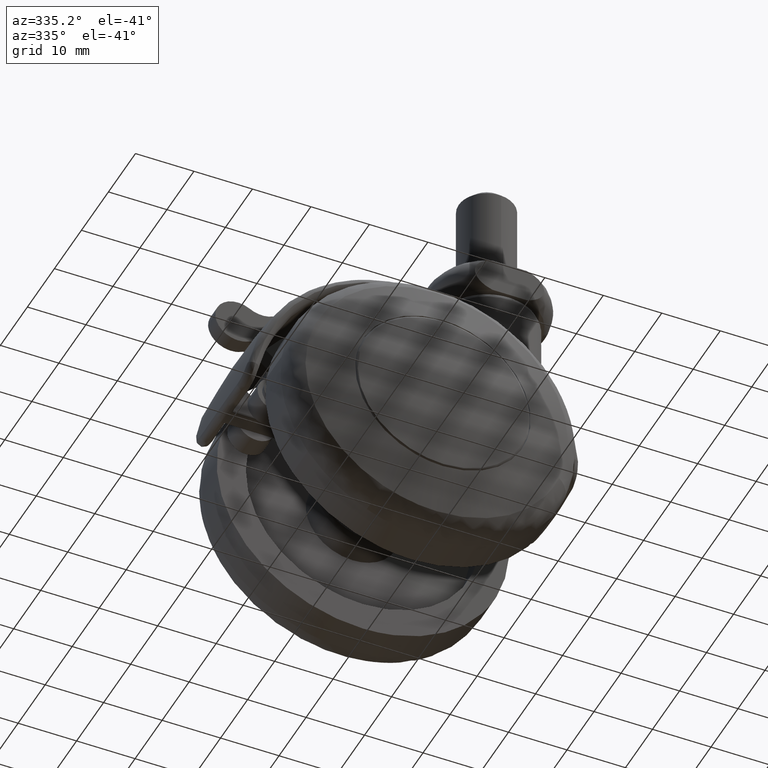
[diagram: clean part render]
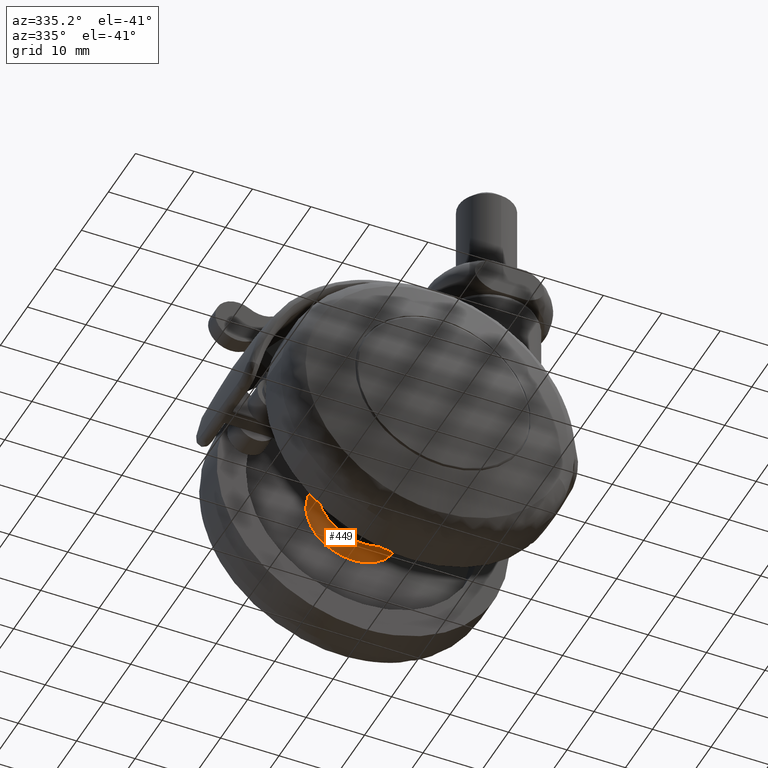
[diagram: same view with one face highlighted and labeled with its STEP entity id]
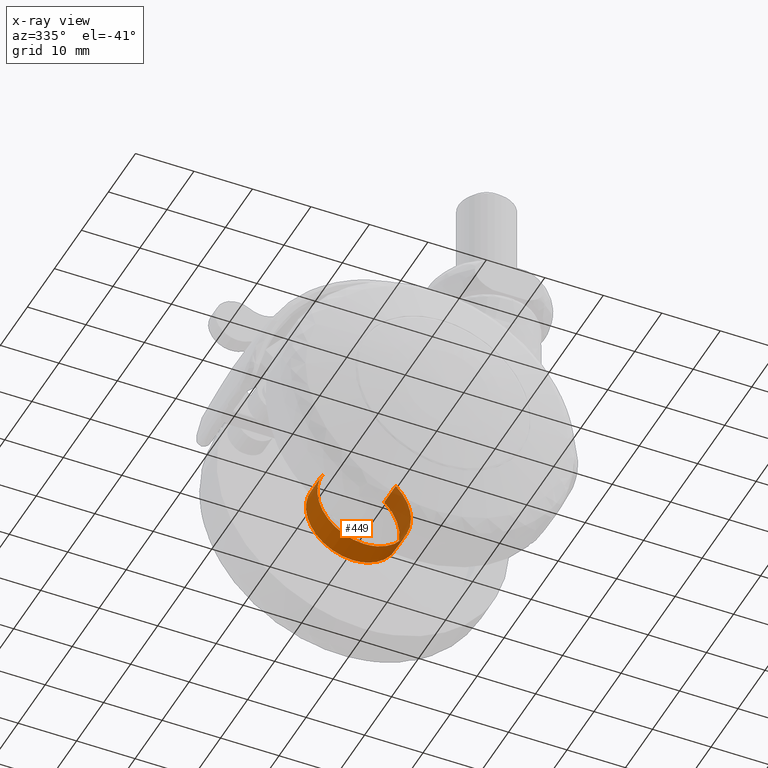
[diagram: x-ray of the same camera — body ghosted, the highlighted face saturated]
A machine part, auxiliary view. The second image highlights one B-rep face of the part: STEP entity #449.
The next image is the same camera in x-ray: the body ghosted, the highlighted face saturated — about 33% of this face is hidden behind the body in this view.
In plain terms, the highlighted face is a freeform B-spline surface patch.
Its self-contained STEP definition (entity closure, byte-faithful):
#252=CARTESIAN_POINT('',(6.999573644516574,-8.499999999999371,3.873753837683934));
#253=VERTEX_POINT('',#252);
#269=CARTESIAN_POINT('',(-5.404720900731245,-8.499999999763439,5.898219391070008));
#270=VERTEX_POINT('',#269);
#284=CARTESIAN_POINT('',(-5.404720914899488,-12.749999999999821,5.898219378087777));
#285=VERTEX_POINT('',#284);
#286=CARTESIAN_POINT('',(-5.404720900731245,-8.499999999763439,5.898219391070008));
#287=CARTESIAN_POINT('',(-5.404720914899488,-12.749999999999821,5.898219378087777));
#288=QUASI_UNIFORM_CURVE('',1,(#286,#287),.UNSPECIFIED.,.F.,.U.);
#289=EDGE_CURVE('',#270,#285,#288,.T.);
#306=CARTESIAN_POINT('',(6.999576779951189,-12.749999999999821,3.873748172177530));
#307=VERTEX_POINT('',#306);
#321=CARTESIAN_POINT('',(6.999573644516574,-8.499999999999371,3.873753837683934));
#322=CARTESIAN_POINT('',(6.999576779951189,-12.749999999999821,3.873748172177530));
#323=QUASI_UNIFORM_CURVE('',1,(#321,#322),.UNSPECIFIED.,.F.,.U.);
#324=EDGE_CURVE('',#253,#307,#323,.T.);
#329=CARTESIAN_POINT('',(-5.404721660925416,-8.393749999077183,5.898218694481136));
#330=CARTESIAN_POINT('',(-11.302940355406554,-8.393749999077183,0.493497033555720));
#331=CARTESIAN_POINT('',(-5.898218694481137,-8.393749999077183,-5.404721660925418));
#332=CARTESIAN_POINT('',(-0.493497033555721,-8.393749999077183,-11.302940355406555));
#333=CARTESIAN_POINT('',(5.404721660925416,-8.393749999077183,-5.898218694481139));
#334=CARTESIAN_POINT('',(10.051278656166613,-8.393749999077185,-1.640433667892901));
#335=CARTESIAN_POINT('',(6.999571419545217,-8.393749999077183,3.873757858035129));
#336=CARTESIAN_POINT('',(-5.404721660925416,-12.858906250022891,5.898218694481136));
#337=CARTESIAN_POINT('',(-11.302940355406554,-12.858906250022887,0.493497033555720));
#338=CARTESIAN_POINT('',(-5.898218694481137,-12.858906250022891,-5.404721660925418));
#339=CARTESIAN_POINT('',(-0.493497033555721,-12.858906250022887,-11.302940355406555));
#340=CARTESIAN_POINT('',(5.404721660925416,-12.858906250022891,-5.898218694481139));
#341=CARTESIAN_POINT('',(10.051278656166613,-12.858906250022887,-1.640433667892901));
#342=CARTESIAN_POINT('',(6.999571419545217,-12.858906250022883,3.873757858035129));
#350=(BOUNDED_SURFACE()B_SPLINE_SURFACE(2,1,((#329,#336),(#330,#337),(#331,#338),(#332,#339),(#333,#340),(#334,#341),(#335,#342)),.UNSPECIFIED.,.F.,.F.,.U.)B_SPLINE_SURFACE_WITH_KNOTS((3,2,2,3),(2,2),(0.0,13.254833995939370,26.509667991878739,37.643728548467799),(0.0,4.465156250945704),.UNSPECIFIED.)GEOMETRIC_REPRESENTATION_ITEM()RATIONAL_B_SPLINE_SURFACE(((1.0,1.0),(0.707106781186548,0.707106781186548),(1.0,1.0),(0.707106781186548,0.707106781186548),(1.0,1.0),(0.753969696196700,0.753969696196700),(0.921270302782944,0.921270302782944)))REPRESENTATION_ITEM('')SURFACE());
#351=CARTESIAN_POINT('',(7.980525390719755,-8.499999999099687,-0.557866012659380));
#352=VERTEX_POINT('',#351);
#353=CARTESIAN_POINT('',(7.980525390719754,-8.499999999099687,-0.557866012659380));
#354=CARTESIAN_POINT('',(8.000000000000199,-8.499999999999831,-0.279272927053736));
#355=CARTESIAN_POINT('',(8.000000000000199,-8.499999999999831,-1.776357E-015));
#356=CARTESIAN_POINT('',(8.000000000000199,-8.499999999999831,2.066060771854248));
#357=CARTESIAN_POINT('',(6.999573644516575,-8.499999999999371,3.873753837683934));
#365=(BOUNDED_CURVE()B_SPLINE_CURVE(2,(#353,#354,#355,#356,#357),.UNSPECIFIED.,.F.,.U.)B_SPLINE_CURVE_WITH_KNOTS((3,2,3),(0.237833686532728,0.250000000000000,0.332484200584579),.UNSPECIFIED.)CURVE()GEOMETRIC_REPRESENTATION_ITEM()RATIONAL_B_SPLINE_CURVE((0.972879876381977,0.985746277149909,1.0,0.903363747958112,0.870495207893545))REPRESENTATION_ITEM(''));
#366=EDGE_CURVE('',#352,#253,#365,.T.);
#367=ORIENTED_EDGE('',*,*,#366,.T.);
#368=ORIENTED_EDGE('',*,*,#324,.T.);
#369=CARTESIAN_POINT('',(0.0,-12.749999999999821,-8.000000000000201));
#370=VERTEX_POINT('',#369);
#371=CARTESIAN_POINT('',(0.0,-12.749999999999821,-8.000000000000201));
#372=CARTESIAN_POINT('',(8.000000000000199,-12.749999999999821,-8.000000000000201));
#373=CARTESIAN_POINT('',(8.000000000000199,-12.749999999999821,-1.776357E-015));
#374=CARTESIAN_POINT('',(8.000000000000199,-12.749999999999819,2.066057318287701));
#375=CARTESIAN_POINT('',(6.999576779951189,-12.749999999999817,3.873748172177530));
#383=(BOUNDED_CURVE()B_SPLINE_CURVE(2,(#371,#372,#373,#374,#375),.UNSPECIFIED.,.F.,.U.)B_SPLINE_CURVE_WITH_KNOTS((3,2,3),(0.0,0.250000000000000,0.332484076030420),.UNSPECIFIED.)CURVE()GEOMETRIC_REPRESENTATION_ITEM()RATIONAL_B_SPLINE_CURVE((1.0,0.707106781186547,1.0,0.903363893882387,0.870495307159086))REPRESENTATION_ITEM(''));
#384=EDGE_CURVE('',#370,#307,#383,.T.);
#385=ORIENTED_EDGE('',*,*,#384,.F.);
#386=CARTESIAN_POINT('',(-5.404720914899490,-12.749999999999813,5.898219378087777));
#387=CARTESIAN_POINT('',(-8.000000000000199,-12.749999999999828,3.520084851021065));
#388=CARTESIAN_POINT('',(-8.000000000000199,-12.749999999999821,-1.776357E-015));
#389=CARTESIAN_POINT('',(-8.000000000000199,-12.749999999999821,-8.000000000000201));
#390=CARTESIAN_POINT('',(0.0,-12.749999999999821,-8.000000000000201));
#398=(BOUNDED_CURVE()B_SPLINE_CURVE(2,(#386,#387,#388,#389,#390),.UNSPECIFIED.,.F.,.U.)B_SPLINE_CURVE_WITH_KNOTS((3,2,3),(0.618415189990137,0.750000000000000,1.0),.UNSPECIFIED.)CURVE()GEOMETRIC_REPRESENTATION_ITEM()RATIONAL_B_SPLINE_CURVE((0.853959783194780,0.845838805797019,1.0,0.707106781186547,1.0))REPRESENTATION_ITEM(''));
#399=EDGE_CURVE('',#285,#370,#398,.T.);
#400=ORIENTED_EDGE('',*,*,#399,.F.);
#401=ORIENTED_EDGE('',*,*,#289,.F.);
#402=CARTESIAN_POINT('',(-7.999368353630673,-8.499999999111582,0.100528319071155));
#403=VERTEX_POINT('',#402);
#404=CARTESIAN_POINT('',(-5.404720900731245,-8.499999999763439,5.898219391070008));
#405=CARTESIAN_POINT('',(-7.955886687183457,-8.499999999500636,3.560507255751337));
#406=CARTESIAN_POINT('',(-7.999368353630673,-8.499999999111582,0.100528319071155));
#414=(BOUNDED_CURVE()B_SPLINE_CURVE(2,(#404,#405,#406),.UNSPECIFIED.,.F.,.U.)B_SPLINE_CURVE_WITH_KNOTS((3,3),(0.618415189627505,0.747784295921538),.UNSPECIFIED.)CURVE()GEOMETRIC_REPRESENTATION_ITEM()RATIONAL_B_SPLINE_CURVE((0.853959783239541,0.845975551275673,0.994854295643575))REPRESENTATION_ITEM(''));
#415=EDGE_CURVE('',#270,#403,#414,.T.);
#416=ORIENTED_EDGE('',*,*,#415,.T.);
#417=CARTESIAN_POINT('',(0.0,-8.499999999999831,-8.000000000000201));
#418=VERTEX_POINT('',#417);
#419=CARTESIAN_POINT('',(-7.999368353630674,-8.499999999111582,0.100528319071155));
#420=CARTESIAN_POINT('',(-8.000000000000199,-8.499999999999831,0.050266143939455));
#421=CARTESIAN_POINT('',(-8.000000000000199,-8.499999999999831,-1.776357E-015));
#422=CARTESIAN_POINT('',(-8.000000000000199,-8.499999999999831,-8.000000000000201));
#423=CARTESIAN_POINT('',(0.0,-8.499999999999831,-8.000000000000201));
#431=(BOUNDED_CURVE()B_SPLINE_CURVE(2,(#419,#420,#421,#422,#423),.UNSPECIFIED.,.F.,.U.)B_SPLINE_CURVE_WITH_KNOTS((3,2,3),(0.747784295921538,0.750000000000000,1.0),.UNSPECIFIED.)CURVE()GEOMETRIC_REPRESENTATION_ITEM()RATIONAL_B_SPLINE_CURVE((0.994854295643574,0.997404141202084,1.0,0.707106781186547,1.0))REPRESENTATION_ITEM(''));
#432=EDGE_CURVE('',#403,#418,#431,.T.);
#433=ORIENTED_EDGE('',*,*,#432,.T.);
#434=CARTESIAN_POINT('',(0.0,-8.499999999999831,-8.000000000000201));
#435=CARTESIAN_POINT('',(7.460294778028513,-8.499999999999831,-8.000000000000203));
#436=CARTESIAN_POINT('',(7.980525390719755,-8.499999999099687,-0.557866012659380));
#444=(BOUNDED_CURVE()B_SPLINE_CURVE(2,(#434,#435,#436),.UNSPECIFIED.,.F.,.U.)B_SPLINE_CURVE_WITH_KNOTS((3,3),(0.0,0.237833686532728),.UNSPECIFIED.)CURVE()GEOMETRIC_REPRESENTATION_ITEM()RATIONAL_B_SPLINE_CURVE((1.0,0.721360504036638,0.972879876381977))REPRESENTATION_ITEM(''));
#445=EDGE_CURVE('',#418,#352,#444,.T.);
#446=ORIENTED_EDGE('',*,*,#445,.T.);
#447=EDGE_LOOP('',(#367,#368,#385,#400,#401,#416,#433,#446));
#448=FACE_OUTER_BOUND('',#447,.T.);
#449=ADVANCED_FACE('',(#448),#350,.T.);